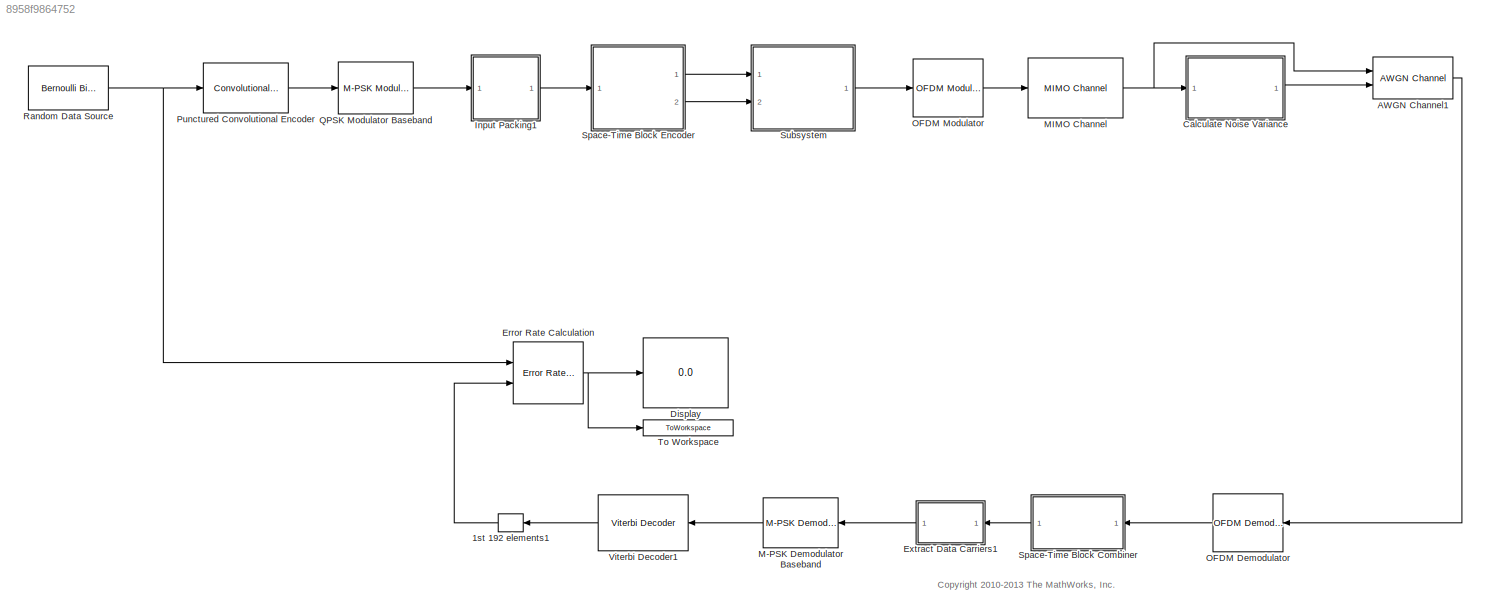
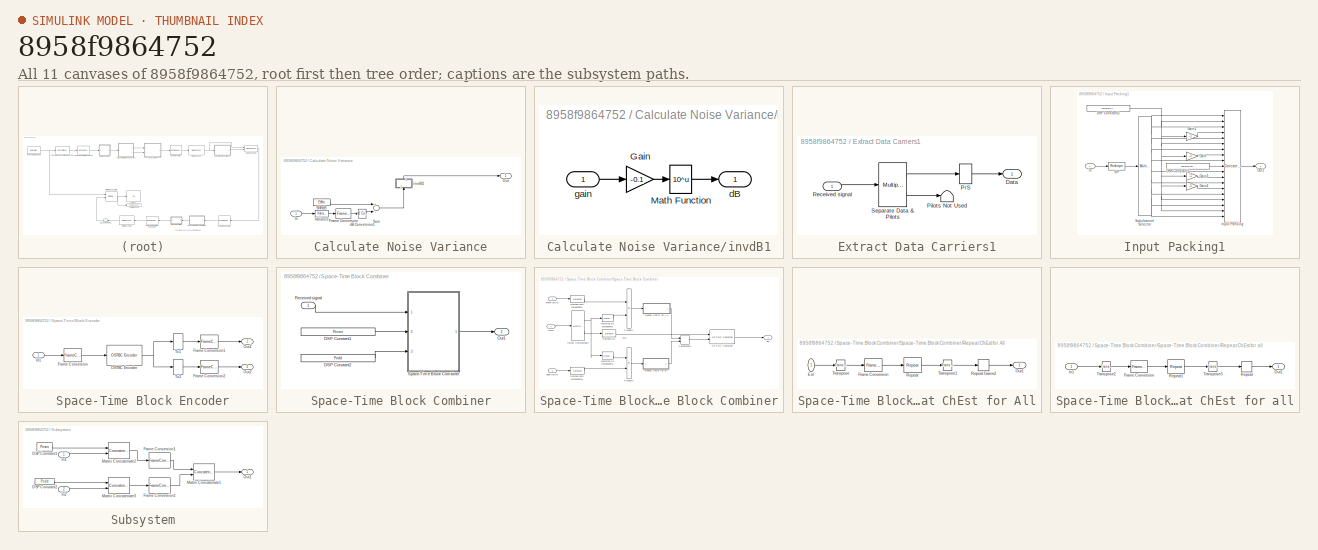
[diagram: thumbnail index - all 11 canvases of the model, root first then tree order]
MODEL slx_8958f9864752
KIND model
CONFIG PostLoadFcn = if ~exist('EbNo'),EbNo=6;end\nif ~exist('maxNumBits'),maxNumBits=1e7;end;\nif ~exist('maxNumErrs'),maxNumErrs=1e3;end;\n\nload Parameters.mat\n
BLOCK [Selector] 1st 192 elements1
  IndexOptions = Index vector (dialog),Index vector (dialog)
  Indices = 1:378,1
  InputPortWidth = 3
  NumberOfDimensions = 2
  OutputSizes = 1,1
  Ports = [1, 1]
BLOCK [Reference] AWGN Channel1  REF=commchan3/AWGN
Channel
  EbNodB = 10
  EsNodB = 15
  InputProcessing = Columns as channels (frame based)
  Ports = [2, 1]
  Ps = 1
  SNRdB = 10
  SourceBlock = commchan3/AWGN\nChannel
  SourceType = AWGN Channel
  Tsym = 1e-6
  UserDataPersistent = on
  bitsPerSym = 1
  noiseMode = Variance from port
  seed = 67
  variance = 1
BLOCK [SubSystem] Calculate Noise Variance
  Ports = [1, 1]
  RequestExecContextInheritance = off
BLOCK [FrameConversion] Calculate Noise Variance/Frame Conversion
  OutFrame = Sample-based
  Ports = [1, 1]
BLOCK [Inport] Calculate Noise Variance/In
  IconDisplay = Port number
BLOCK [Outport] Calculate Noise Variance/Out
  IconDisplay = Port number
BLOCK [Constant] Calculate Noise Variance/SNRdB
  Value = EbNo
BLOCK [Sum] Calculate Noise Variance/Sum
  InputSameDT = off
  Inputs = +-
  OutDataTypeStr = Inherit: Inherit via internal rule
  Ports = [2, 1]
BLOCK [Reference] Calculate Noise Variance/Variance  REF=dspstat3/Variance
  InputProcessing = Columns as channels (frame based)
  LockScale = off
  Ports = [1, 1]
  SourceBlock = dspstat3/Variance
  SourceType = Variance
  UserDataPersistent = on
  accumFracLength = 30
  accumMode = Same as input
  accumWordLength = 32
  additionalParams = off
  allowOverrides = on
  dimension = 1
  directionMode = Each column
  memoryFracLength = 30
  memoryMode = Same as input-squared product
  memoryWordLength = 32
  outputFracLength = 30
  outputMode = Same as accumulator
  outputWordLength = 32
  overflowMode = off
  prodOutputFracLength = 30
  prodOutputMode = Same as input
  prodOutputWordLength = 32
  reset_popup = None
  roiEnable = off
  roiFlag = off
  roiOutput = Individual statistics for each ROI
  roiPortion = Entire ROI
  roiType = Rectangles
  roundingMode = Floor
  run = off
  treatSBRowAsCol = on
BLOCK [Reference] Calculate Noise Variance/dB Conversion1  REF=dspmathops/dB Conversion
  Ports = [1, 1]
  R = 1
  SourceBlock = dspmathops/dB Conversion
  SourceType = dB Conversion
  dBtype = dB
  fuzz = on
  intype = Power
BLOCK [SubSystem] Calculate Noise Variance/invdB1
  Ports = [1, 1]
  RequestExecContextInheritance = off
BLOCK [Gain] Calculate Noise Variance/invdB1/Gain
  Gain = -0.1
BLOCK [Math] Calculate Noise Variance/invdB1/Math Function
  Operator = 10^u
  Ports = [1, 1]
BLOCK [Outport] Calculate Noise Variance/invdB1/dB
  IconDisplay = Port number
BLOCK [Inport] Calculate Noise Variance/invdB1/gain
  IconDisplay = Port number
BLOCK [Display] Display
  Decimation = 1
  Ports = [1]
BLOCK [Reference] Error Rate Calculation  REF=commsink2/Error Rate
Calculation
  N = 0
  PMode = Port
  Ports = [2, 1]
  RsMode2 = off
  SourceBlock = commsink2/Error Rate\nCalculation
  SourceType = Error Rate Calculation
  WsName = ErrorVec1
  cp_mode = Entire frame
  maxBits = maxNumBits
  numErr = maxNumErrs
  st_delay = 0
  stop = on
  subframe = []
BLOCK [SubSystem] Extract Data Carriers1
  Ports = [1, 1]
  RequestExecContextInheritance = off
BLOCK [Outport] Extract Data Carriers1/Data
  IconDisplay = Port number
BLOCK [Reshape] Extract Data Carriers1/P//S
  OutputDimensionality = Column vector (2-D)
  OutputDimensions = [72, 1]
  Ports = [1, 1]
BLOCK [Terminator] Extract Data Carriers1/Pilots Not Used
BLOCK [Inport] Extract Data Carriers1/Received signal
  IconDisplay = Port number
BLOCK [Reference] Extract Data Carriers1/Separate Data & Pilots  REF=dspindex/Multiport
Selector
  Ports = [1, 2]
  SourceBlock = dspindex/Multiport\nSelector
  SourceType = Multiport Selector
  idxCellArray = {[1:12 14:37 39:62 64:87 89:112 114:137 139:162 164:187 189:200],[13 38 63 88 113 138 163 188]}
  idxErrMode = Clip Index
  rowsOrCols = Rows
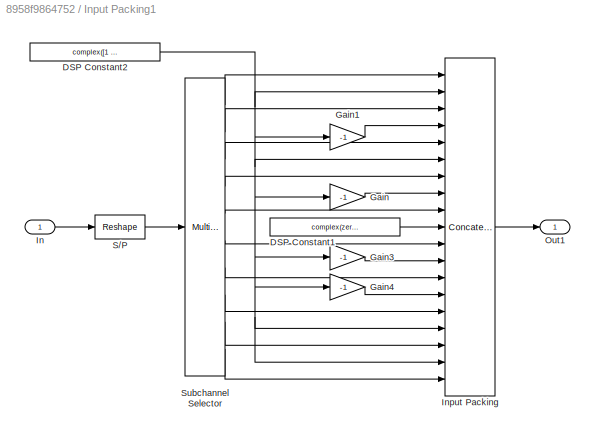
BLOCK [SubSystem] Input Packing1
  Ports = [1, 1]
  RequestExecContextInheritance = off
BLOCK [Constant] Input Packing1/DSP Constant1
  SamplingMode = Frame based
  Value = complex(zeros(1,2))
  VectorParams1D = off
BLOCK [Constant] Input Packing1/DSP Constant2
  SamplingMode = Frame based
  Value = complex([1 1],[0 0])
  VectorParams1D = off
BLOCK [Gain] Input Packing1/Gain
  Gain = -1
  OutDataTypeStr = Inherit: Inherit via internal rule
  ParamDataTypeStr = Inherit: Inherit via internal rule
  SaturateOnIntegerOverflow = off
BLOCK [Gain] Input Packing1/Gain1
  Gain = -1
  OutDataTypeStr = Inherit: Inherit via internal rule
  ParamDataTypeStr = Inherit: Inherit via internal rule
  SaturateOnIntegerOverflow = off
BLOCK [Gain] Input Packing1/Gain3
  Gain = -1
  OutDataTypeStr = Inherit: Inherit via internal rule
  ParamDataTypeStr = Inherit: Inherit via internal rule
  SaturateOnIntegerOverflow = off
BLOCK [Gain] Input Packing1/Gain4
  Gain = -1
  OutDataTypeStr = Inherit: Inherit via internal rule
  ParamDataTypeStr = Inherit: Inherit via internal rule
  SaturateOnIntegerOverflow = off
BLOCK [Inport] Input Packing1/In
  IconDisplay = Port number
BLOCK [Concatenate] Input Packing1/Input Packing
  Mode = Multidimensional array
  NumInputs = 19
  Ports = [19, 1]
BLOCK [Outport] Input Packing1/Out1
  IconDisplay = Port number
BLOCK [Reshape] Input Packing1/S//P
  OutputDimensionality = Customize
  OutputDimensions = [192 2]
  Ports = [1, 1]
BLOCK [Reference] Input Packing1/Subchannel Selector  REF=dspindex/Multiport
Selector
  Ports = [1, 10]
  SourceBlock = dspindex/Multiport\nSelector
  SourceType = Multiport Selector
  idxCellArray = {[1:12],[13:36],[37:60],[61:84],[85:96],[97:108],[109:132],[133:156],[157:180],[181:192]}
  idxErrMode = Generate Error
  rowsOrCols = Rows
BLOCK [Reference] M-PSK Demodulator Baseband  REF=commdigbbndpm3/M-PSK
Demodulator
Baseband
  Dec = Gray
  DecType = Hard decision
  M = 4
  Mapping = [0 2 3 1]
  OutType = Bit
  Ph = pi/4
  Ports = [1, 1]
  SourceBlock = commdigbbndpm3/M-PSK\nDemodulator\nBaseband
  SourceType = M-PSK Demodulator Baseband
  VarSource = Dialog
  Variance = 1
  derotateFactorDTMode = Same word length as input
  derotateFactorWordLen = 16
  outDtype1 = boolean
  outDtype2 = Inherit via internal rule
BLOCK [Reference] MIMO Channel  REF=commchan3/MIMO Channel
  AntennaSelection = Off
  AveragePathGains = [0 -5 -10]
  DirectPathDopplerShift = 0
  DirectPathInitialPhase = 0
  DopplerSpectrum = doppler( 'Jakes' )
  FadingDistribution = Rayleigh
  KFactor = 3
  MaximumDopplerShift = 5
  NormalizeChannelOutputs = on
  NormalizePathGains = on
  NumReceiveAntennas = 1
  NumTransmitAntennas = 2
  PathDelays = [0 0.4 0.9]*1e-6
  PathGainsOutputPort = off
  Ports = [1, 1]
  RandomStream = mt19937ar with seed
  ReceiveCorrelationMatrix = 1
  SampleRate = 3e6/25
  Seed = 73
  SimulateUsing = Code generation
  SourceBlock = commchan3/MIMO Channel
  SourceType = MIMO Channel
  SpatialCorrelation = on
  TransmitCorrelationMatrix = [1 0; 0 1]
BLOCK [Reference] OFDM Demodulator  REF=commofdm/OFDM Demodulator
  CyclicPrefixLength = 32
  FFTLength = 256
  NumGuardBandCarriers = [28; 27]
  NumReceiveAntennas = 1
  NumSymbols = 3
  PilotCarrierIndices = [12; 26; 40; 54]
  PilotOutputPort = off
  Ports = [1, 1]
  RemoveDCCarrier = off
  SimulateUsing = Code generation
  SourceBlock = commofdm/OFDM Demodulator
  SourceType = OFDM Demodulator
BLOCK [Reference] OFDM Modulator  REF=commofdm/OFDM Modulator
  CyclicPrefixLength = 32
  FFTLength = 256
  InsertDCNull = off
  NumGuardBandCarriers = [28; 27]
  NumSymbols = 3
  NumTransmitAntennas = 2
  PilotCarrierIndices = [12; 26; 40; 54]
  PilotInputPort = off
  Ports = [1, 1]
  SimulateUsing = Code generation
  SourceBlock = commofdm/OFDM Modulator
  SourceType = OFDM Modulator
  WindowLength = 1
  Windowing = off
BLOCK [Reference] Punctured Convolutional Encoder  REF=commcnvcod2/Convolutional
Encoder
  DelayedResetAction = off
  Ports = [1, 1]
  SourceBlock = commcnvcod2/Convolutional\nEncoder
  SourceType = Convolutional Encoder
  hasFinStPort = off
  hasIniStPort = off
  opMode = Terminate trellis by appending bits
  punctureVector = reshape([1 0;1 1],4,1)
  reset = Unused parameter value
  trellis = poly2trellis(7, [171 133])
  usePuncVector = on
BLOCK [Reference] QPSK Modulator Baseband  REF=commdigbbndpm3/M-PSK
Modulator
Baseband
  Enc = Gray
  InType = Bit
  M = 4
  Mapping = [0 2 3 1]
  Ph = pi/4
  Ports = [1, 1]
  SourceBlock = commdigbbndpm3/M-PSK\nModulator\nBaseband
  SourceType = M-PSK Modulator Baseband
  outDtype = double
  outFracLen = 15
  outFracLenMode = Best precision
  outUDDataType = sfix(16)
  outWordLen = 16
BLOCK [Reference] Random Data Source  REF=commrandsrc2/Bernoulli Binary
Generator
  P = 0.5
  Ports = [0, 1]
  SourceBlock = commrandsrc2/Bernoulli Binary\nGenerator
  SourceType = Bernoulli Binary Generator
  Ts = 25/3e6
  frameBased = on
  orient = off
  outDataType = boolean
  sampPerFrame = 378
  seed = 61
BLOCK [SubSystem] Space-Time Block Combiner
  Ports = [1, 1]
  RequestExecContextInheritance = off
BLOCK [Constant] Space-Time Block Combiner/DSP Constant1
  SamplingMode = Frame based
  Value = Peven
  VectorParams1D = off
BLOCK [Constant] Space-Time Block Combiner/DSP Constant2
  SamplingMode = Frame based
  Value = Podd
  VectorParams1D = off
BLOCK [Outport] Space-Time Block Combiner/Out1
  IconDisplay = Port number
BLOCK [Inport] Space-Time Block Combiner/Received signal
  IconDisplay = Port number
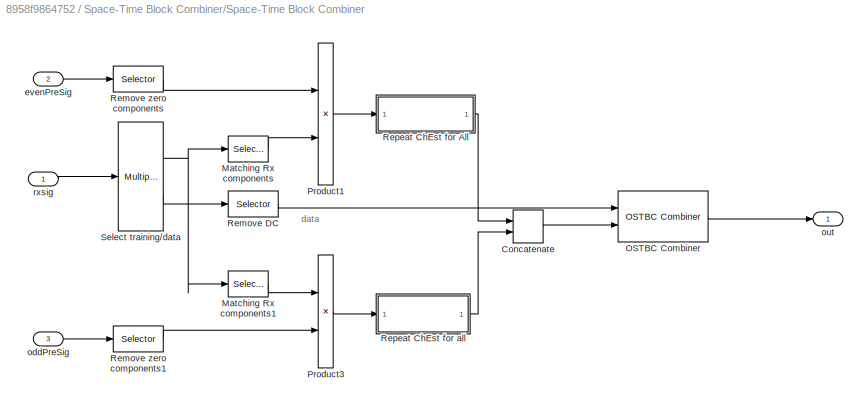
BLOCK [SubSystem] Space-Time Block Combiner/Space-Time Block Combiner
  Ports = [3, 1]
  RequestExecContextInheritance = off
BLOCK [Concatenate] Space-Time Block Combiner/Space-Time Block Combiner/Concatenate
  ConcatenateDimension = 3
  Mode = Multidimensional array
  Ports = [2, 1]
BLOCK [Selector] Space-Time Block Combiner/Space-Time Block Combiner/Matching Rx components
  IndexOptions = Index vector (dialog),Select all
  Indices = [1:2:99 103:2:201],-1
  InputPortWidth = 53
  NumberOfDimensions = 2
  Ports = [1, 1]
BLOCK [Selector] Space-Time Block Combiner/Space-Time Block Combiner/Matching Rx components1
  IndexOptions = Index vector (dialog),Select all
  Indices = [2:2:201],-1
  InputPortWidth = 53
  NumberOfDimensions = 2
  Ports = [1, 1]
BLOCK [Reference] Space-Time Block Combiner/Space-Time Block Combiner/OSTBC Combiner  REF=commmimo/OSTBC Combiner
  Ports = [2, 1]
  SourceBlock = commmimo/OSTBC Combiner
  SourceType = OSTBC Combiner
  crossProductDTMode = Inherit via internal rule
  crossProductFracLen = 16
  crossProductWordLen = 32
  crossSumDTMode = Inherit via internal rule
  crossSumFracLen = 16
  crossSumWordLen = 32
  divisionDTMode = Same as accumulator
  divisionFracLen = 16
  divisionWordLen = 32
  egyProductDTMode = Inherit via internal rule
  egyProductFracLen = 16
  egyProductWordLen = 32
  egySumDTMode = Inherit via internal rule
  egySumFracLen = 16
  egySumWordLen = 32
  numRx = 1
  numTx = 2
  overflowMode = Wrap
  rate = 3/4
  roundingMode = Floor
BLOCK [Product] Space-Time Block Combiner/Space-Time Block Combiner/Product1
  InputSameDT = off
  Inputs = /*
  Ports = [2, 1]
  RndMeth = Floor
BLOCK [Product] Space-Time Block Combiner/Space-Time Block Combiner/Product3
  InputSameDT = off
  Inputs = */
  Ports = [2, 1]
  RndMeth = Floor
BLOCK [Selector] Space-Time Block Combiner/Space-Time Block Combiner/Remove DC 
  IndexOptions = Index vector (dialog),Select all
  Indices = [1:100 102:201],-1
  InputPortWidth = 53
  NumberOfDimensions = 2
  Ports = [1, 1]
BLOCK [Selector] Space-Time Block Combiner/Space-Time Block Combiner/Remove zero components
  IndexOptions = Index vector (dialog),Select all
  Indices = [1:2:99 103:2:201],-1
  InputPortWidth = 53
  NumberOfDimensions = 2
  Ports = [1, 1]
BLOCK [Selector] Space-Time Block Combiner/Space-Time Block Combiner/Remove zero components1
  IndexOptions = Index vector (dialog),Select all
  Indices = [2:2:201],-1
  InputPortWidth = 53
  NumberOfDimensions = 2
  Ports = [1, 1]
BLOCK [SubSystem] Space-Time Block Combiner/Space-Time Block Combiner/Repeat ChEst for All
  Ports = [1, 1]
  RequestExecContextInheritance = off
BLOCK [Inport] Space-Time Block Combiner/Space-Time Block Combiner/Repeat ChEst for All/Est
  IconDisplay = Port number
BLOCK [FrameConversion] Space-Time Block Combiner/Space-Time Block Combiner/Repeat ChEst for All/Frame Conversion
  Ports = [1, 1]
BLOCK [Outport] Space-Time Block Combiner/Space-Time Block Combiner/Repeat ChEst for All/Out1
  IconDisplay = Port number
BLOCK [Reference] Space-Time Block Combiner/Space-Time Block Combiner/Repeat ChEst for All/Repeat  REF=dspsigops/Repeat
  InputProcessing = Columns as channels (frame based)
  N = 2
  Ports = [1, 1]
  RateOptions = Enforce single-rate processing
  SourceBlock = dspsigops/Repeat
  SourceType = Repeat
  UserDataPersistent = on
  ic = 0
  mode = Unused parameter value
BLOCK [Selector] Space-Time Block Combiner/Space-Time Block Combiner/Repeat ChEst for All/Repeat Gains2
  IndexOptions = Index vector (dialog),Select all
  Indices = a(:),-1
  InputPortWidth = 53
  NumberOfDimensions = 2
  Ports = [1, 1]
BLOCK [Reference] Space-Time Block Combiner/Space-Time Block Combiner/Repeat ChEst for All/Transpose  REF=dspmtrx3/Transpose
  Hermitian = off
  Ports = [1, 1]
  SourceBlock = dspmtrx3/Transpose
  SourceType = Transpose
  overflowFlag = on
BLOCK [Reference] Space-Time Block Combiner/Space-Time Block Combiner/Repeat ChEst for All/Transpose1  REF=dspmtrx3/Transpose
  Hermitian = off
  Ports = [1, 1]
  SourceBlock = dspmtrx3/Transpose
  SourceType = Transpose
  overflowFlag = on
BLOCK [SubSystem] Space-Time Block Combiner/Space-Time Block Combiner/Repeat ChEst for all
  Ports = [1, 1]
  RequestExecContextInheritance = off
BLOCK [FrameConversion] Space-Time Block Combiner/Space-Time Block Combiner/Repeat ChEst for all/Frame Conversion
  Ports = [1, 1]
BLOCK [Inport] Space-Time Block Combiner/Space-Time Block Combiner/Repeat ChEst for all/In1
  IconDisplay = Port number
BLOCK [Outport] Space-Time Block Combiner/Space-Time Block Combiner/Repeat ChEst for all/Out1
  IconDisplay = Port number
BLOCK [Selector] Space-Time Block Combiner/Space-Time Block Combiner/Repeat ChEst for all/Repeat
  IndexOptions = Index vector (dialog),Select all
  Indices = a(:),-1
  InputPortWidth = 53
  NumberOfDimensions = 2
  Ports = [1, 1]
BLOCK [Reference] Space-Time Block Combiner/Space-Time Block Combiner/Repeat ChEst for all/Repeat1  REF=dspsigops/Repeat
  InputProcessing = Columns as channels (frame based)
  N = 2
  Ports = [1, 1]
  RateOptions = Enforce single-rate processing
  SourceBlock = dspsigops/Repeat
  SourceType = Repeat
  UserDataPersistent = on
  ic = 0
  mode = Unused parameter value
BLOCK [Reference] Space-Time Block Combiner/Space-Time Block Combiner/Repeat ChEst for all/Transpose2  REF=dspmtrx3/Transpose
  Hermitian = off
  Ports = [1, 1]
  SourceBlock = dspmtrx3/Transpose
  SourceType = Transpose
  overflowFlag = on
BLOCK [Reference] Space-Time Block Combiner/Space-Time Block Combiner/Repeat ChEst for all/Transpose3  REF=dspmtrx3/Transpose
  Hermitian = off
  Ports = [1, 1]
  SourceBlock = dspmtrx3/Transpose
  SourceType = Transpose
  overflowFlag = on
BLOCK [Reference] Space-Time Block Combiner/Space-Time Block Combiner/Select training//data  REF=dspindex/Multiport
Selector
  Ports = [1, 2]
  SourceBlock = dspindex/Multiport\nSelector
  SourceType = Multiport Selector
  idxCellArray = {1,[2 3]}
  idxErrMode = Clip Index
  rowsOrCols = Columns
BLOCK [Inport] Space-Time Block Combiner/Space-Time Block Combiner/evenPreSig
  IconDisplay = Port number
  Port = 2
BLOCK [Inport] Space-Time Block Combiner/Space-Time Block Combiner/oddPreSig
  IconDisplay = Port number
  Port = 3
BLOCK [Outport] Space-Time Block Combiner/Space-Time Block Combiner/out
  IconDisplay = Port number
BLOCK [Inport] Space-Time Block Combiner/Space-Time Block Combiner/rxsig
  IconDisplay = Port number
BLOCK [SubSystem] Space-Time Block Encoder
  Ports = [1, 2]
  RequestExecContextInheritance = off
BLOCK [FrameConversion] Space-Time Block Encoder/Frame Conversion
  OutFrame = Sample-based
  Ports = [1, 1]
BLOCK [FrameConversion] Space-Time Block Encoder/Frame Conversion1
  Ports = [1, 1]
BLOCK [FrameConversion] Space-Time Block Encoder/Frame Conversion2
  Ports = [1, 1]
BLOCK [Inport] Space-Time Block Encoder/In1
  IconDisplay = Port number
BLOCK [Reference] Space-Time Block Encoder/OSTBC Encoder  REF=commmimo/OSTBC Encoder
  Ports = [1, 1]
  SourceBlock = commmimo/OSTBC Encoder
  SourceType = OSTBC Encoder
  numTx = 2
  overflowMode = Wrap
  rate = 3/4
BLOCK [Outport] Space-Time Block Encoder/Out1
  IconDisplay = Port number
BLOCK [Outport] Space-Time Block Encoder/Out2
  IconDisplay = Port number
  Port = 2
BLOCK [Selector] Space-Time Block Encoder/Tx1
  IndexOptions = Select all,Select all,Index vector (dialog)
  Indices = prm80216ds.txCPIndices,1,1
  InputPortWidth = 256
  NumberOfDimensions = 3
  OutputSizes = 1,1,1
  Ports = [1, 1]
BLOCK [Selector] Space-Time Block Encoder/Tx2
  IndexOptions = Select all,Select all,Index vector (dialog)
  Indices = prm80216ds.txCPIndices,1,2
  InputPortWidth = 256
  NumberOfDimensions = 3
  OutputSizes = 1,1,1
  Ports = [1, 1]
BLOCK [SubSystem] Subsystem
  Ports = [2, 1]
  RequestExecContextInheritance = off
BLOCK [Constant] Subsystem/DSP Constant1
  SamplingMode = Frame based
  Value = Peven
  VectorParams1D = off
BLOCK [Constant] Subsystem/DSP Constant2
  SamplingMode = Frame based
  Value = Podd
  VectorParams1D = off
BLOCK [FrameConversion] Subsystem/Frame Conversion1
  OutFrame = Sample-based
  Ports = [1, 1]
BLOCK [FrameConversion] Subsystem/Frame Conversion2
  OutFrame = Sample-based
  Ports = [1, 1]
BLOCK [Inport] Subsystem/In1
  IconDisplay = Port number
BLOCK [Inport] Subsystem/In2
  IconDisplay = Port number
  Port = 2
BLOCK [Concatenate] Subsystem/Matrix Concatenate1
  ConcatenateDimension = 3
  Mode = Multidimensional array
  Ports = [2, 1]
BLOCK [Concatenate] Subsystem/Matrix Concatenate2
  ConcatenateDimension = 2
  Mode = Multidimensional array
  Ports = [2, 1]
BLOCK [Concatenate] Subsystem/Matrix Concatenate3
  ConcatenateDimension = 2
  Mode = Multidimensional array
  Ports = [2, 1]
BLOCK [Outport] Subsystem/Out1
  IconDisplay = Port number
BLOCK [ToWorkspace] To Workspace
  MaxDataPoints = 1
  Ports = [1]
  SampleTime = -1
  VariableName = ber
BLOCK [Reference] Viterbi Decoder1  REF=commcnvcod2/Viterbi Decoder
  Ports = [1, 1]
  SourceBlock = commcnvcod2/Viterbi Decoder
  SourceType = Viterbi Decoder
  dectype = Hard decision
  delayedResetAction = off
  erasures = off
  isPunctured = off
  nsdecb = 4
  opmode = Terminated
  outDataType = boolean
  punctureVector = reshape([1 0;1 1],4,1)
  reset = off
  runSigValErrCheck = off
  smWordLength = 16
  tbdepth = 34
  trellis = poly2trellis(7, [171 133])
ANNOTATION (root): <copyright redacted>
ANNOTATION Space-Time Block Combiner/Space-Time Block Combiner: data
LINE 1st 192 elements1:1 -> Error Rate Calculation:2
LINE AWGN Channel1:1 -> OFDM Demodulator:1
LINE Calculate Noise Variance/Frame Conversion:1 -> Calculate Noise Variance/dB Conversion1:1
LINE Calculate Noise Variance/In:1 -> Calculate Noise Variance/Variance:1
LINE Calculate Noise Variance/SNRdB:1 -> Calculate Noise Variance/Sum:1
LINE Calculate Noise Variance/Sum:1 -> Calculate Noise Variance/invdB1:1
LINE Calculate Noise Variance/Variance:1 -> Calculate Noise Variance/Frame Conversion:1
LINE Calculate Noise Variance/dB Conversion1:1 -> Calculate Noise Variance/Sum:2
LINE Calculate Noise Variance/invdB1/Gain:1 -> Calculate Noise Variance/invdB1/Math Function:1
LINE Calculate Noise Variance/invdB1/Math Function:1 -> Calculate Noise Variance/invdB1/dB:1
LINE Calculate Noise Variance/invdB1/gain:1 -> Calculate Noise Variance/invdB1/Gain:1
LINE Calculate Noise Variance/invdB1:1 -> Calculate Noise Variance/Out:1
LINE Calculate Noise Variance:1 -> AWGN Channel1:2
NET Error Rate Calculation:1 -> Display:1, To Workspace:1
LINE Extract Data Carriers1/P//S:1 -> Extract Data Carriers1/Data:1
LINE Extract Data Carriers1/Received signal:1 -> Extract Data Carriers1/Separate Data & Pilots:1
LINE Extract Data Carriers1/Separate Data & Pilots:1 -> Extract Data Carriers1/P//S:1
LINE Extract Data Carriers1/Separate Data & Pilots:2 -> Extract Data Carriers1/Pilots Not Used:1
LINE Extract Data Carriers1:1 -> M-PSK Demodulator Baseband:1
LINE Input Packing1/DSP Constant1:1 -> Input Packing1/Input Packing:10
NET Input Packing1/DSP Constant2:1 -> Input Packing1/Gain1:1, Input Packing1/Gain3:1, Input Packing1/Gain4:1, Input Packing1/Gain:1, Input Packing1/Input Packing:16, Input Packing1/Input Packing:18, Input Packing1/Input Packing:2, Input Packing1/Input Packing:6
LINE Input Packing1/Gain1:1 -> Input Packing1/Input Packing:4
LINE Input Packing1/Gain3:1 -> Input Packing1/Input Packing:12
LINE Input Packing1/Gain4:1 -> Input Packing1/Input Packing:14
LINE Input Packing1/Gain:1 -> Input Packing1/Input Packing:8
LINE Input Packing1/In:1 -> Input Packing1/S//P:1
LINE Input Packing1/Input Packing:1 -> Input Packing1/Out1:1
LINE Input Packing1/S//P:1 -> Input Packing1/Subchannel Selector:1
LINE Input Packing1/Subchannel Selector:1 -> Input Packing1/Input Packing:1
LINE Input Packing1/Subchannel Selector:10 -> Input Packing1/Input Packing:19
LINE Input Packing1/Subchannel Selector:2 -> Input Packing1/Input Packing:3
LINE Input Packing1/Subchannel Selector:3 -> Input Packing1/Input Packing:5
LINE Input Packing1/Subchannel Selector:4 -> Input Packing1/Input Packing:7
LINE Input Packing1/Subchannel Selector:5 -> Input Packing1/Input Packing:9
LINE Input Packing1/Subchannel Selector:6 -> Input Packing1/Input Packing:11
LINE Input Packing1/Subchannel Selector:7 -> Input Packing1/Input Packing:13
LINE Input Packing1/Subchannel Selector:8 -> Input Packing1/Input Packing:15
LINE Input Packing1/Subchannel Selector:9 -> Input Packing1/Input Packing:17
LINE Input Packing1:1 -> Space-Time Block Encoder:1
LINE M-PSK Demodulator Baseband:1 -> Viterbi Decoder1:1
NET MIMO Channel:1 -> AWGN Channel1:1, Calculate Noise Variance:1
LINE OFDM Demodulator:1 -> Space-Time Block Combiner:1
LINE OFDM Modulator:1 -> MIMO Channel:1
LINE Punctured Convolutional Encoder:1 -> QPSK Modulator Baseband:1
LINE QPSK Modulator Baseband:1 -> Input Packing1:1
NET Random Data Source:1 -> Error Rate Calculation:1, Punctured Convolutional Encoder:1
LINE Space-Time Block Combiner/DSP Constant1:1 -> Space-Time Block Combiner/Space-Time Block Combiner:2
LINE Space-Time Block Combiner/DSP Constant2:1 -> Space-Time Block Combiner/Space-Time Block Combiner:3
LINE Space-Time Block Combiner/Received signal:1 -> Space-Time Block Combiner/Space-Time Block Combiner:1
LINE Space-Time Block Combiner/Space-Time Block Combiner/Concatenate:1 -> Space-Time Block Combiner/Space-Time Block Combiner/OSTBC Combiner:2
LINE Space-Time Block Combiner/Space-Time Block Combiner/Matching Rx components1:1 -> Space-Time Block Combiner/Space-Time Block Combiner/Product3:1
LINE Space-Time Block Combiner/Space-Time Block Combiner/Matching Rx components:1 -> Space-Time Block Combiner/Space-Time Block Combiner/Product1:2
LINE Space-Time Block Combiner/Space-Time Block Combiner/OSTBC Combiner:1 -> Space-Time Block Combiner/Space-Time Block Combiner/out:1
LINE Space-Time Block Combiner/Space-Time Block Combiner/Product1:1 -> Space-Time Block Combiner/Space-Time Block Combiner/Repeat ChEst for All:1
LINE Space-Time Block Combiner/Space-Time Block Combiner/Product3:1 -> Space-Time Block Combiner/Space-Time Block Combiner/Repeat ChEst for all:1
LINE Space-Time Block Combiner/Space-Time Block Combiner/Remove DC :1 -> Space-Time Block Combiner/Space-Time Block Combiner/OSTBC Combiner:1
LINE Space-Time Block Combiner/Space-Time Block Combiner/Remove zero components1:1 -> Space-Time Block Combiner/Space-Time Block Combiner/Product3:2
LINE Space-Time Block Combiner/Space-Time Block Combiner/Remove zero components:1 -> Space-Time Block Combiner/Space-Time Block Combiner/Product1:1
LINE Space-Time Block Combiner/Space-Time Block Combiner/Repeat ChEst for All/Est:1 -> Space-Time Block Combiner/Space-Time Block Combiner/Repeat ChEst for All/Transpose:1
LINE Space-Time Block Combiner/Space-Time Block Combiner/Repeat ChEst for All/Frame Conversion:1 -> Space-Time Block Combiner/Space-Time Block Combiner/Repeat ChEst for All/Repeat:1
LINE Space-Time Block Combiner/Space-Time Block Combiner/Repeat ChEst for All/Repeat Gains2:1 -> Space-Time Block Combiner/Space-Time Block Combiner/Repeat ChEst for All/Out1:1
LINE Space-Time Block Combiner/Space-Time Block Combiner/Repeat ChEst for All/Repeat:1 -> Space-Time Block Combiner/Space-Time Block Combiner/Repeat ChEst for All/Transpose1:1
LINE Space-Time Block Combiner/Space-Time Block Combiner/Repeat ChEst for All/Transpose1:1 -> Space-Time Block Combiner/Space-Time Block Combiner/Repeat ChEst for All/Repeat Gains2:1
LINE Space-Time Block Combiner/Space-Time Block Combiner/Repeat ChEst for All/Transpose:1 -> Space-Time Block Combiner/Space-Time Block Combiner/Repeat ChEst for All/Frame Conversion:1
LINE Space-Time Block Combiner/Space-Time Block Combiner/Repeat ChEst for All:1 -> Space-Time Block Combiner/Space-Time Block Combiner/Concatenate:1
LINE Space-Time Block Combiner/Space-Time Block Combiner/Repeat ChEst for all/Frame Conversion:1 -> Space-Time Block Combiner/Space-Time Block Combiner/Repeat ChEst for all/Repeat1:1
LINE Space-Time Block Combiner/Space-Time Block Combiner/Repeat ChEst for all/In1:1 -> Space-Time Block Combiner/Space-Time Block Combiner/Repeat ChEst for all/Transpose2:1
LINE Space-Time Block Combiner/Space-Time Block Combiner/Repeat ChEst for all/Repeat1:1 -> Space-Time Block Combiner/Space-Time Block Combiner/Repeat ChEst for all/Transpose3:1
LINE Space-Time Block Combiner/Space-Time Block Combiner/Repeat ChEst for all/Repeat:1 -> Space-Time Block Combiner/Space-Time Block Combiner/Repeat ChEst for all/Out1:1
LINE Space-Time Block Combiner/Space-Time Block Combiner/Repeat ChEst for all/Transpose2:1 -> Space-Time Block Combiner/Space-Time Block Combiner/Repeat ChEst for all/Frame Conversion:1
LINE Space-Time Block Combiner/Space-Time Block Combiner/Repeat ChEst for all/Transpose3:1 -> Space-Time Block Combiner/Space-Time Block Combiner/Repeat ChEst for all/Repeat:1
LINE Space-Time Block Combiner/Space-Time Block Combiner/Repeat ChEst for all:1 -> Space-Time Block Combiner/Space-Time Block Combiner/Concatenate:2
NET Space-Time Block Combiner/Space-Time Block Combiner/Select training//data:1 -> Space-Time Block Combiner/Space-Time Block Combiner/Matching Rx components1:1, Space-Time Block Combiner/Space-Time Block Combiner/Matching Rx components:1
LINE Space-Time Block Combiner/Space-Time Block Combiner/Select training//data:2 -> Space-Time Block Combiner/Space-Time Block Combiner/Remove DC :1
LINE Space-Time Block Combiner/Space-Time Block Combiner/evenPreSig:1 -> Space-Time Block Combiner/Space-Time Block Combiner/Remove zero components:1
LINE Space-Time Block Combiner/Space-Time Block Combiner/oddPreSig:1 -> Space-Time Block Combiner/Space-Time Block Combiner/Remove zero components1:1
LINE Space-Time Block Combiner/Space-Time Block Combiner/rxsig:1 -> Space-Time Block Combiner/Space-Time Block Combiner/Select training//data:1
LINE Space-Time Block Combiner/Space-Time Block Combiner:1 -> Space-Time Block Combiner/Out1:1
LINE Space-Time Block Combiner:1 -> Extract Data Carriers1:1
LINE Space-Time Block Encoder/Frame Conversion1:1 -> Space-Time Block Encoder/Out1:1
LINE Space-Time Block Encoder/Frame Conversion2:1 -> Space-Time Block Encoder/Out2:1
LINE Space-Time Block Encoder/Frame Conversion:1 -> Space-Time Block Encoder/OSTBC Encoder:1
LINE Space-Time Block Encoder/In1:1 -> Space-Time Block Encoder/Frame Conversion:1
NET Space-Time Block Encoder/OSTBC Encoder:1 -> Space-Time Block Encoder/Tx1:1, Space-Time Block Encoder/Tx2:1
LINE Space-Time Block Encoder/Tx1:1 -> Space-Time Block Encoder/Frame Conversion1:1
LINE Space-Time Block Encoder/Tx2:1 -> Space-Time Block Encoder/Frame Conversion2:1
LINE Space-Time Block Encoder:1 -> Subsystem:1
LINE Space-Time Block Encoder:2 -> Subsystem:2
LINE Subsystem/DSP Constant1:1 -> Subsystem/Matrix Concatenate2:1
LINE Subsystem/DSP Constant2:1 -> Subsystem/Matrix Concatenate3:1
LINE Subsystem/Frame Conversion1:1 -> Subsystem/Matrix Concatenate1:1
LINE Subsystem/Frame Conversion2:1 -> Subsystem/Matrix Concatenate1:2
LINE Subsystem/In1:1 -> Subsystem/Matrix Concatenate2:2
LINE Subsystem/In2:1 -> Subsystem/Matrix Concatenate3:2
LINE Subsystem/Matrix Concatenate1:1 -> Subsystem/Out1:1
LINE Subsystem/Matrix Concatenate2:1 -> Subsystem/Frame Conversion1:1
LINE Subsystem/Matrix Concatenate3:1 -> Subsystem/Frame Conversion2:1
LINE Subsystem:1 -> OFDM Modulator:1
LINE Viterbi Decoder1:1 -> 1st 192 elements1:1
note: NET lines group one-source signal fan-out (src -> all destinations, sorted); 1:1 wires keep LINE
